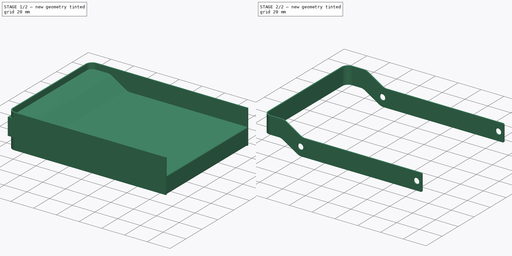
[diagram: build sequence overview — one tinted view per stage of 2, left to right]
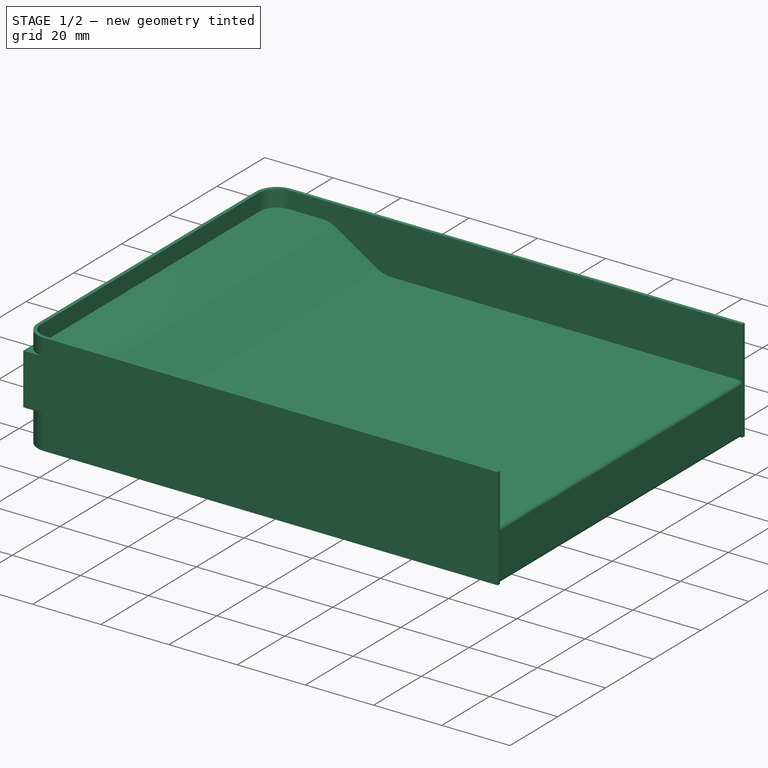
[diagram: stage 1 of 2 — iso view after this stage's code; geometry added in this stage tinted green]
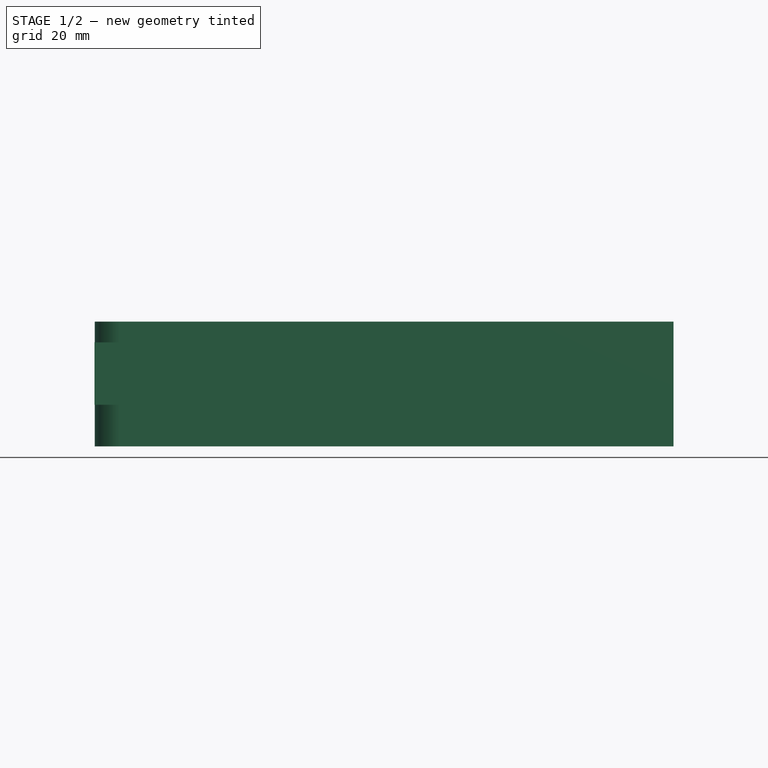
[diagram: stage 1 of 2 — front view after this stage's code; geometry added in this stage tinted green]
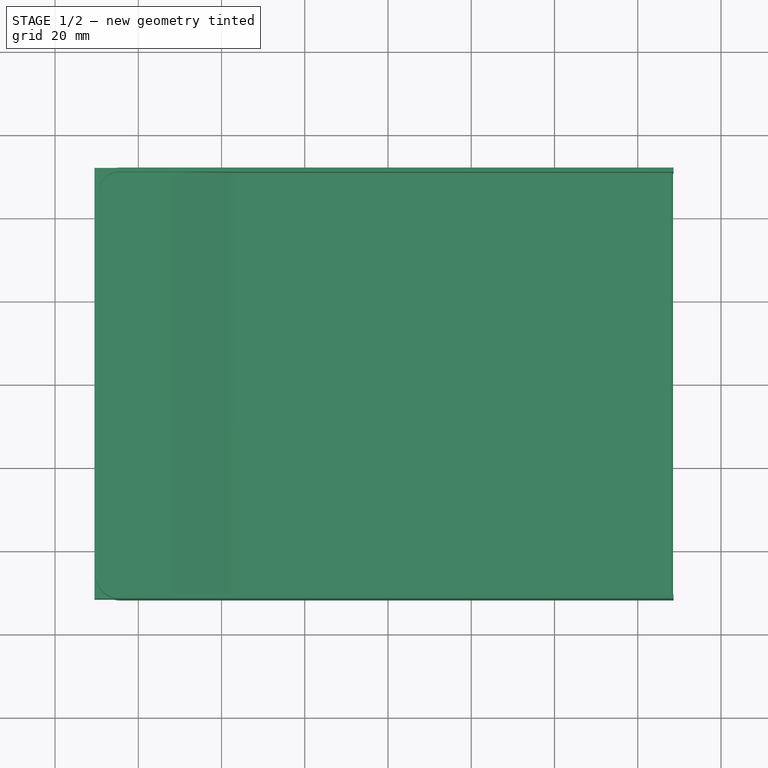
[diagram: stage 1 of 2 — top view after this stage's code; geometry added in this stage tinted green]
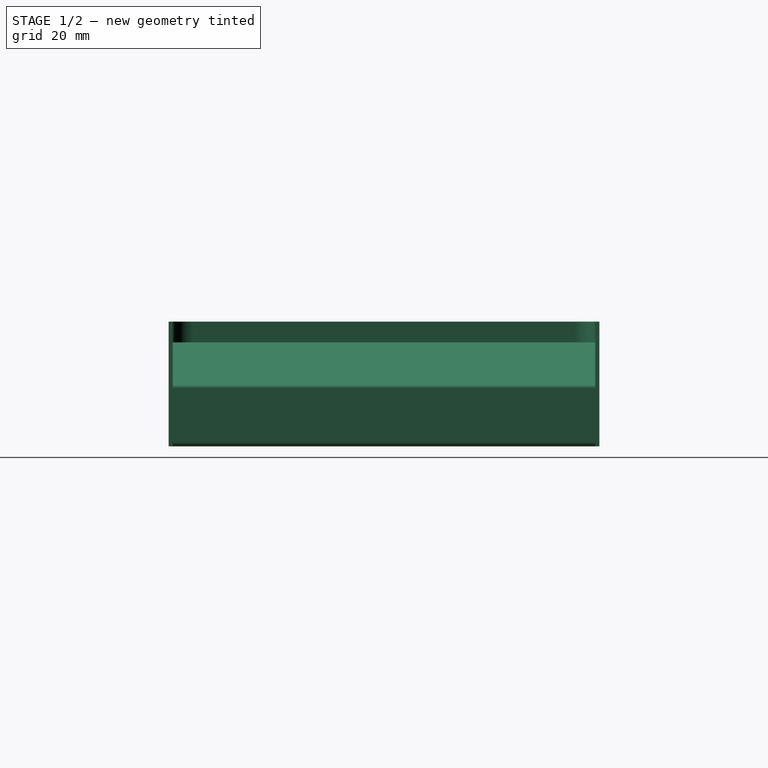
[diagram: stage 1 of 2 — right view after this stage's code; geometry added in this stage tinted green]
FCSTD DOCUMENT  (FreeCAD 0.18R16155 (Git))
Label: PT-H01B
License: All rights reserved
LicenseURL: http://en.wikipedia.org/wiki/All_rights_reserved
objects: Sketcher::SketchObject×3, PartDesign::Body×3, PartDesign::Pad×2, PartDesign::ShapeBinder×1, PartDesign::Boolean×1, App::Part×1
note: 12 computed .brp shape members not serialized (recipe doc carries the construction recipe); baked Part::Feature solids carry a one-line shape summary decoded from their .brp

FEATURE [Sketcher::SketchObject] Sketch  label="Boîtier.Sketch"
  MapMode = 5
  Support = -> [XY_Plane001]
  sketch-geometry (4):
    g0: LineSegment StartX=-73.5 StartY=51.75 StartZ=0 EndX=-73.5 EndY=-51.75 EndZ=0
    g1: LineSegment StartX=-73.5 StartY=-51.75 StartZ=0 EndX=73.5 EndY=-51.75 EndZ=0
    g2: LineSegment StartX=73.5 StartY=-51.75 StartZ=0 EndX=73.5 EndY=51.75 EndZ=0
    g3: LineSegment StartX=73.5 StartY=51.75 StartZ=0 EndX=-73.5 EndY=51.75 EndZ=0
  constraints (9):
    c: DistanceY(g0,g0) = 103.5
    c: DistanceX(g1,g1) = 147
    c: Symmetric(g1,g1,g-2)
    c: Symmetric(g2,g2,g-1)
    c: Symmetric(g3,g3,g-2)
    c: Symmetric(g0,g0,g-1)
    c: Symmetric(g0,g2,g-2)
    c: Symmetric(g1,g3,g-1)
    c: Coincident(g0,g1)
FEATURE [PartDesign::Body] Body  label="Boîtier.Body"
  Group = -> [Sketch]
  Origin = -> Origin001
FEATURE [Sketcher::SketchObject] Sketch001  label="Base.Sketch"
  MapMode = 5
  Support = -> [XY_Plane002]
  sketch-geometry (20):
    g0: LineSegment StartX=-89.4599 StartY=45.75 StartZ=0 EndX=-89.4599 EndY=-45.75 EndZ=0
    g1: LineSegment StartX=48.5941 StartY=50.75 StartZ=0 EndX=48.5941 EndY=51.75 EndZ=0
    g2: ArcOfCircle CenterX=-84.4599 CenterY=45.75 CenterZ=0 NormalX=0 NormalY=0 NormalZ=1 AngleXU=0 Radius=5 StartAngle=1.5708 EndAngle=3.14159
    g3: ArcOfCircle CenterX=-84.4599 CenterY=-45.75 CenterZ=0 NormalX=0 NormalY=0 NormalZ=1 AngleXU=0 Radius=5 StartAngle=3.14159 EndAngle=4.71239
    g4: LineSegment StartX=48.5941 StartY=50.75 StartZ=0 EndX=-84.4599 EndY=50.75 EndZ=0
    g5: LineSegment StartX=48.5941 StartY=-50.75 StartZ=0 EndX=-84.4599 EndY=-50.75 EndZ=0
    g6: ArcOfCircle CenterX=-84.4599 CenterY=45.75 CenterZ=0 NormalX=0 NormalY=0 NormalZ=1 AngleXU=0 Radius=6 StartAngle=1.5708 EndAngle=3.14159
    g7: ArcOfCircle CenterX=-84.4599 CenterY=-45.75 CenterZ=0 NormalX=0 NormalY=0 NormalZ=1 AngleXU=0 Radius=6 StartAngle=3.14159 EndAngle=4.71239
    g8: LineSegment StartX=-84.4599 StartY=51.75 StartZ=0 EndX=48.5941 EndY=51.75 EndZ=0
    g9: LineSegment StartX=-84.4599 StartY=-51.75 StartZ=0 EndX=48.5941 EndY=-51.75 EndZ=0
    g10: LineSegment StartX=48.5941 StartY=-50.75 StartZ=0 EndX=48.5941 EndY=-51.75 EndZ=0
    g11: LineSegment StartX=-90.4599 StartY=45.75 StartZ=0 EndX=-90.4599 EndY=-45.75 EndZ=0
    g12: LineSegment [constr] StartX=-89.4599 StartY=-45.75 StartZ=0 EndX=-90.4599 EndY=-45.75 EndZ=0
    g13: LineSegment [constr] StartX=-84.4599 StartY=-51.75 StartZ=0 EndX=-84.4599 EndY=-50.75 EndZ=0
    g14: LineSegment [constr] StartX=-84.4599 StartY=51.75 StartZ=0 EndX=-84.4599 EndY=-51.75 EndZ=0
    g15: LineSegment [constr] StartX=-90.4599 StartY=-45.75 StartZ=0 EndX=-84.4599 EndY=-45.75 EndZ=0
    g16: LineSegment [constr] StartX=-89.4599 StartY=0 StartZ=0 EndX=-90.4599 EndY=0 EndZ=0
    g17: LineSegment [constr] StartX=-84.4599 StartY=45.75 StartZ=0 EndX=-69.4599 EndY=45.75 EndZ=0
    g18: LineSegment [constr] StartX=-89.4599 StartY=45.75 StartZ=0 EndX=-84.4599 EndY=45.75 EndZ=0
    g19: LineSegment [constr] StartX=-90.4599 StartY=45.75 StartZ=0 EndX=-89.4599 EndY=45.75 EndZ=0
  constraints (54):
    c: Coincident(g0,g3)
    c: Coincident(g0,g2)
    c: Coincident(g11,g7)
    c: Coincident(g11,g6)
    c: Coincident(g3,g5)
    c: Coincident(g7,g9)
    c: Coincident(g6,g8)
    c: Coincident(g2,g4)
    c: Coincident(g5,g10)
    c: Coincident(g9,g10)
    c: Coincident(g1,g8)
    c: Coincident(g4,g1)
    c: Parallel(g4,g8)
    c: Parallel(g8,g9)
    c: Parallel(g14,g11)
    c: Parallel(g11,g0)
    c: Equal(g10,g13)
    c: Equal(g13,g12)
    c: Equal(g1,g10)
    c: Coincident(g14,g6)
    c: Coincident(g14,g13)
    c: Coincident(g13,g3)
    c: Coincident(g13,g7)
    c: Coincident(g12,g15)
    c: Coincident(g12,g7)
    c: Perpendicular(g5,g13)
    c: Perpendicular(g9,g14)
    c: DistanceY(g14,g14) = 103.5
    c: Coincident(g2,g6)
    c: PointOnObject(g2,g14)
    c: PointOnObject(g16,g11)
    c: Coincident(g15,g7)
    c: Coincident(g3,g7)
    c: PointOnObject(g3,g14)
    c: Coincident(g12,g0)
    c: PointOnObject(g16,g-1)
    c: PointOnObject(g16,g-1)
    c: DistanceX(g16,g16) = 1
    c: Perpendicular(g14,g15)
    c: PointOnObject(g2,g14)
    c: Perpendicular(g5,g14)
    c: Symmetric(g2,g3,g-1)
    c: Equal(g5,g4)
    c: Coincident(g17,g2)
    c: Perpendicular(g17,g14)
    c: DistanceX(g17,g17) = 15
    c: Coincident(g18,g2)
    c: Coincident(g18,g0)
    c: DistanceX(g18,g18) = 5
    c: Perpendicular(g14,g18)
    c: Coincident(g19,g0)
    c: Coincident(g19,g6)
    c: Equal(g19,g16)
    c: Equal(g19,g1)
FEATURE [Sketcher::SketchObject] Sketch002  label="Face.Sketch"
  MapMode = 5
  Placement = pos=(0,0,0) rot=(1,0,0;1.5708rad)
  Support = -> [XZ_Plane003]
  sketch-geometry (38):
    g0: LineSegment StartX=-57.53 StartY=1.8e-15 StartZ=0 EndX=47.47 EndY=0 EndZ=0
    g1: LineSegment StartX=48.47 StartY=14 StartZ=0 EndX=48.47 EndY=1 EndZ=0
    g2: LineSegment [constr] StartX=47.47 StartY=15 StartZ=0 EndX=47.47 EndY=14 EndZ=0
    g3: LineSegment [constr] StartX=47.47 StartY=14 StartZ=0 EndX=48.47 EndY=14 EndZ=0
    g4: LineSegment [constr] StartX=47.47 StartY=0 StartZ=0 EndX=47.47 EndY=1 EndZ=0
    g5: LineSegment [constr] StartX=47.47 StartY=1 StartZ=0 EndX=48.47 EndY=1 EndZ=0
    g6: ArcOfCircle CenterX=47.47 CenterY=14 CenterZ=0 NormalX=0 NormalY=0 NormalZ=1 AngleXU=0 Radius=1 StartAngle=0 EndAngle=1.5708
    g7: ArcOfCircle CenterX=47.47 CenterY=1 CenterZ=0 NormalX=0 NormalY=0 NormalZ=1 AngleXU=0 Radius=1 StartAngle=4.71239 EndAngle=6.28319
    g8: LineSegment StartX=-55.03 StartY=15 StartZ=0 EndX=47.47 EndY=15 EndZ=0
    g9: Circle CenterX=-58.0059 CenterY=7.5 CenterZ=0 NormalX=0 NormalY=0 NormalZ=1 AngleXU=0 Radius=2.5
    g10: Circle CenterX=43.5941 CenterY=7.5 CenterZ=0 NormalX=0 NormalY=0 NormalZ=1 AngleXU=0 Radius=2.5
    g11: LineSegment [constr] StartX=-58.0059 StartY=7.52873 StartZ=0 EndX=43.5941 EndY=7.52873 EndZ=0
    g12: LineSegment [constr] StartX=43.5974 StartY=7.5 StartZ=0 EndX=43.5974 EndY=0 EndZ=0
    g13: LineSegment [constr] StartX=26.5762 StartY=7.50078 StartZ=0 EndX=48.47 EndY=7.50078 EndZ=0
    g14: LineSegment [constr] StartX=-89.03 StartY=25 StartZ=0 EndX=-89.03 EndY=0 EndZ=0
    g15: LineSegment [constr] StartX=-36.394 StartY=15 StartZ=0 EndX=-36.394 EndY=0 EndZ=0
    g16: LineSegment StartX=-89.03 StartY=25 StartZ=0 EndX=-74.03 EndY=25.0007 EndZ=0
    g17: LineSegment StartX=-89.03 StartY=10 StartZ=0 EndX=-76.53 EndY=10.0006 EndZ=0
    g18: LineSegment StartX=-70.8835 StartY=24.0007 StartZ=0 EndX=-58.1764 EndY=16 EndZ=0
    g19: LineSegment StartX=-73.3835 StartY=9.00079 StartZ=0 EndX=-60.6764 EndY=1 EndZ=0
    g20: ArcOfCircle CenterX=-75.3587 CenterY=15.3699 CenterZ=0 NormalX=0 NormalY=0 NormalZ=1 AngleXU=0 Radius=9.722 StartAngle=1.09245 EndAngle=1.43369
    g21: ArcOfCircle CenterX=-53.7012 CenterY=24.6308 CenterZ=0 NormalX=0 NormalY=0 NormalZ=1 AngleXU=0 Radius=9.722 StartAngle=4.23404 EndAngle=4.57529
    g22: ArcOfCircle CenterX=-56.2012 CenterY=9.63077 CenterZ=0 NormalX=0 NormalY=0 NormalZ=1 AngleXU=0 Radius=9.722 StartAngle=4.23404 EndAngle=4.57529
    g23: LineSegment [constr] StartX=48.47 StartY=25.0065 StartZ=0 EndX=48.47 EndY=0 EndZ=0
    g24: LineSegment [constr] StartX=-76.53 StartY=10.0006 StartZ=0 EndX=-76.5299 EndY=9.00063 EndZ=0
    g25: ArcOfCircle CenterX=-77.3161 CenterY=2.07591 CenterZ=0 NormalX=0 NormalY=0 NormalZ=1 AngleXU=0 Radius=7.96362 StartAngle=1.05432 EndAngle=1.47192
    g26: LineSegment [constr] StartX=-70.8835 StartY=24.0007 StartZ=0 EndX=-70.8835 EndY=25.0007 EndZ=0
    g27: LineSegment [constr] StartX=-55.03 StartY=16 StartZ=0 EndX=-55.03 EndY=15 EndZ=0
    g28: LineSegment [constr] StartX=-55.03 StartY=16 StartZ=0 EndX=-58.1764 EndY=16 EndZ=0
    g29: LineSegment [constr] StartX=-60.6764 StartY=0 StartZ=0 EndX=-60.6764 EndY=1 EndZ=0
    g30: LineSegment [constr] StartX=-74.03 StartY=25.0007 StartZ=0 EndX=-70.8835 EndY=25.0007 EndZ=0
    g31: LineSegment [constr] StartX=-60.6764 StartY=0 StartZ=0 EndX=-57.53 EndY=1.8e-15 EndZ=0
    g32: LineSegment [constr] StartX=-76.5299 StartY=9.00063 StartZ=0 EndX=-73.3835 EndY=9.00079 EndZ=0
    g33: LineSegment [constr] StartX=48.47 StartY=25.0065 StartZ=0 EndX=-89.03 EndY=25 EndZ=0
    g34: LineSegment StartX=-90.53 StartY=25 StartZ=0 EndX=-90.53 EndY=10 EndZ=0
    g35: LineSegment [constr] StartX=-90.53 StartY=25 StartZ=0 EndX=-90.53 EndY=0 EndZ=0
    g36: LineSegment StartX=-90.53 StartY=25 StartZ=0 EndX=-89.03 EndY=25 EndZ=0
    g37: LineSegment StartX=-90.53 StartY=10 StartZ=0 EndX=-89.03 EndY=10 EndZ=0
  constraints (100):
    c: Coincident(g0,g7)
    c: Coincident(g6,g8)
    c: Coincident(g7,g1)
    c: Coincident(g6,g1)
    c: DistanceY(g14,g14) = 25
    c: PointOnObject(g14,g-1)
    c: Perpendicular(g14,g-1,g14) = 1.5708
    c: Parallel(g8,g0)
    c: PointOnObject(g0,g-1)
    c: PointOnObject(g12,g0)
    c: Coincident(g4,g0)
    c: Coincident(g7,g4)
    c: Coincident(g5,g7)
    c: Coincident(g1,g5)
    c: PointOnObject(g13,g1)
    c: Perpendicular(g12,g13,g10) = 1.5708
    c: Perpendicular(g12,g11,g10) = 1.5708
    c: Perpendicular(g12,g0,g12) = 1.5708
    c: Perpendicular(g4,g0,g0) = 4.71239
    c: Perpendicular(g5,g1,g1) = 4.71239
    c: Perpendicular(g13,g1,g13) = 4.71239
    c: Coincident(g3,g1)
    c: Coincident(g2,g6)
    c: Coincident(g6,g2)
    c: Coincident(g3,g6)
    c: Perpendicular(g3,g1,g1) = 4.71239
    c: Perpendicular(g2,g8,g6) = 1.5708
    c: PointOnObject(g0,g-1)
    c: PointOnObject(g17,g14)
    c: DistanceY(g17,g14) = 15
    c: PointOnObject(g15,g8)
    c: PointOnObject(g15,g0)
    c: Perpendicular(g15,g8,g15) = 1.5708
    c: DistanceX(g17,g17) = 12.5
    c: DistanceX(g16,g16) = 15
    c: DistanceX(g8,g8) = 102.5
    c: DistanceX(g0,g0) = 105
    c: Equal(g2,g3)
    c: Equal(g3,g5)
    c: Equal(g5,g4)
    c: DistanceX(g3,g3) = 1
    c: PointOnObject(g23,g1)
    c: PointOnObject(g23,g-1)
    c: DistanceX(g14,g23) = 137.5
    c: Coincident(g16,g20)
    c: Coincident(g20,g18)
    c: Coincident(g18,g21)
    c: Coincident(g21,g8)
    c: Coincident(g19,g22)
    c: Coincident(g22,g0)
    c: Equal(g20,g21)
    c: Equal(g21,g22)
    c: Equal(g18,g19)
    c: Coincident(g24,g17)
    c: Perpendicular(g24,g17)
    c: DistanceY(g24,g24) = 1
    c: Coincident(g25,g17)
    c: Coincident(g25,g19)
    c: Coincident(g28,g18)
    c: Coincident(g28,g27)
    c: Coincident(g27,g8)
    c: Coincident(g18,g26)
    c: Coincident(g29,g19)
    c: Perpendicular(g27,g8)
    c: Perpendicular(g28,g27)
    c: Equal(g24,g26)
    c: Equal(g26,g27)
    c: Equal(g27,g29)
    c: Horizontal(g30)
    c: Coincident(g31,g29)
    c: Coincident(g31,g0)
    c: Coincident(g32,g24)
    c: Coincident(g32,g19)
    c: Coincident(g30,g16)
    c: Coincident(g30,g26)
    c: PointOnObject(g29,g-1)
    c: Perpendicular(g32,g24)
    c: Perpendicular(g31,g29)
    c: Perpendicular(g30,g26)
    c: Equal(g32,g30)
    c: Equal(g28,g31)
    c: Equal(g30,g28)
    c: Perpendicular(g-1,g23)
    c: Coincident(g33,g23)
    c: PointOnObject(g16,g33)
    c: PointOnObject(g35,g-1)
    c: Perpendicular(g-1,g35)
    c: PointOnObject(g34,g35)
    c: Coincident(g36,g34)
    c: Coincident(g37,g34)
    c: Equal(g36,g37)
    c: Equal(g34,g15)
    c: Perpendicular(g34,g36)
    c: Perpendicular(g34,g37)
    c: Coincident(g37,g17)
    c: DistanceX(g36,g36) = 1.5
    c: Coincident(g33,g14)
    c: Coincident(g36,g16)
    c: Coincident(g16,g14)
    c: PointOnObject(g35,g36)
FEATURE [PartDesign::Pad] Pad  label="Base.Pad"
  Length = 30
  Length2 = 100
  Profile = -> Sketch001
  Type = 0
FEATURE [PartDesign::ShapeBinder] ShapeBinder  label="Base.ShapeBinder"
  Placement = pos=(0,0,30) rot=(0,0,1;0rad)
  Support = -> [Pad]
  TraceSupport = false
FEATURE [PartDesign::Pad] Pad001  label="Face.Pad"
  Length = 103.5
  Length2 = 100
  Midplane = true
  Placement = pos=(0,0,0) rot=(1,0,0;1.5708rad)
  Profile = -> Sketch002
  Type = 0
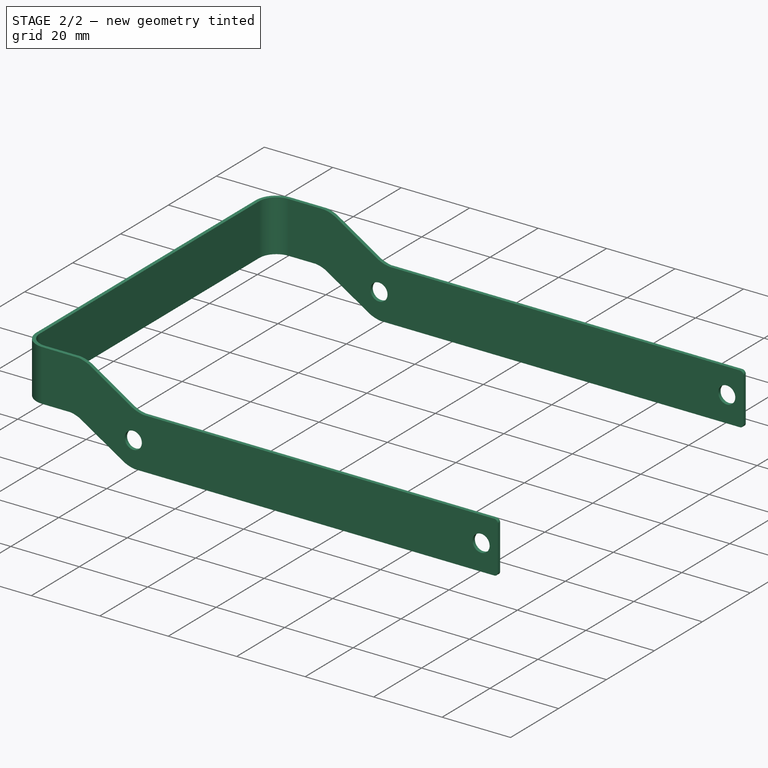
[diagram: stage 2 of 2 — iso view after this stage's code; geometry added in this stage tinted green]
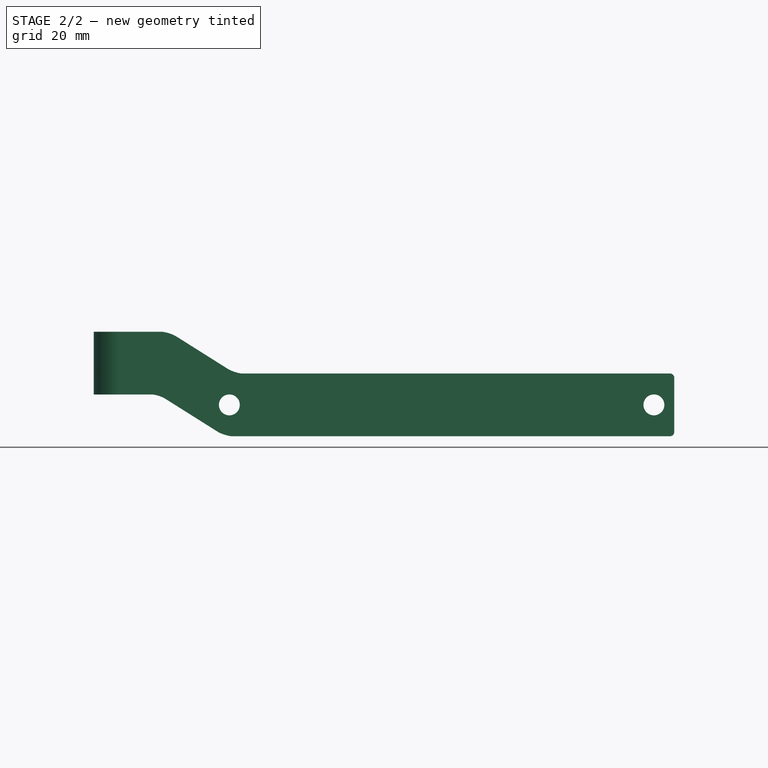
[diagram: stage 2 of 2 — front view after this stage's code; geometry added in this stage tinted green]
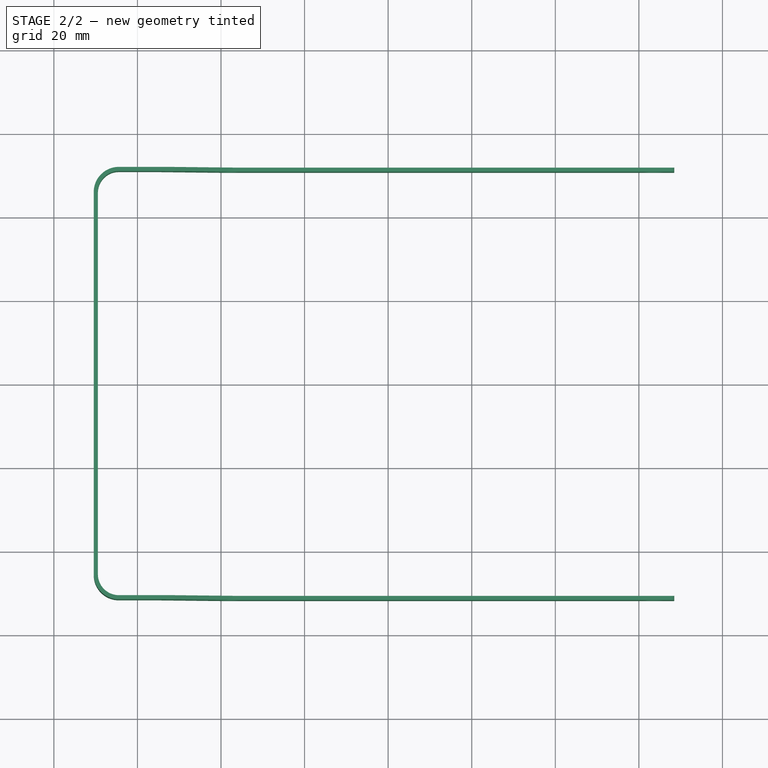
[diagram: stage 2 of 2 — top view after this stage's code; geometry added in this stage tinted green]
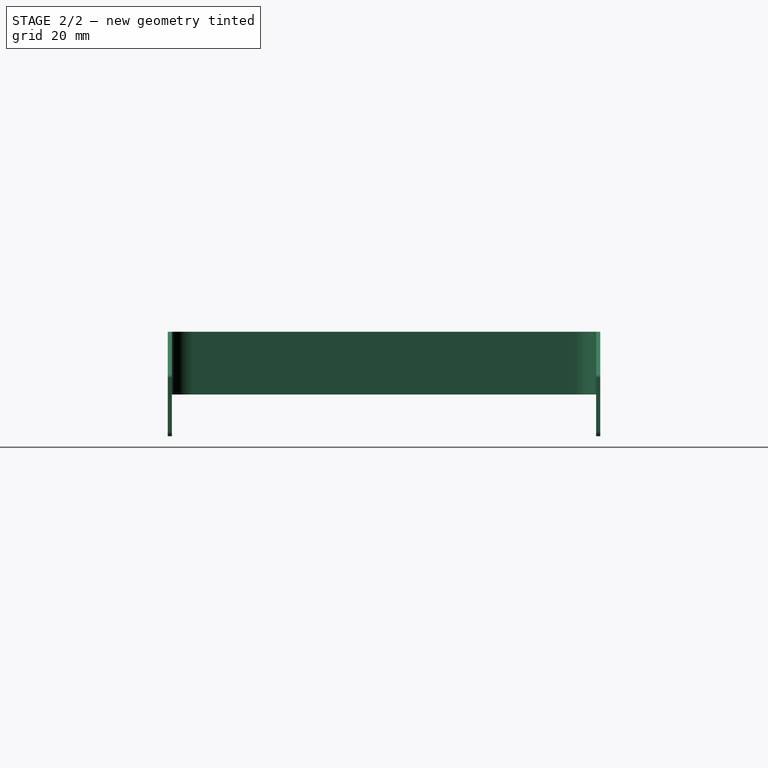
[diagram: stage 2 of 2 — right view after this stage's code; geometry added in this stage tinted green]
FEATURE [PartDesign::Body] Body002  label="Face.Body"
  Group = -> [Sketch002,Pad001,ShapeBinder]
  Origin = -> Origin003
  Tip = -> Pad001
FEATURE [PartDesign::Boolean] Boolean  label="Poignée.Boolean"
  BaseFeature = -> Pad
  Group = -> [Body002]
  Type = 2
FEATURE [PartDesign::Body] Body001  label="Base.Body"
  Group = -> [Sketch001,Pad,Boolean]
  Origin = -> Origin002
  Tip = -> Boolean
FEATURE [App::Part] Part  label="Poignée.Part"
  Group = -> [Body,Body001]
  Origin = -> Origin
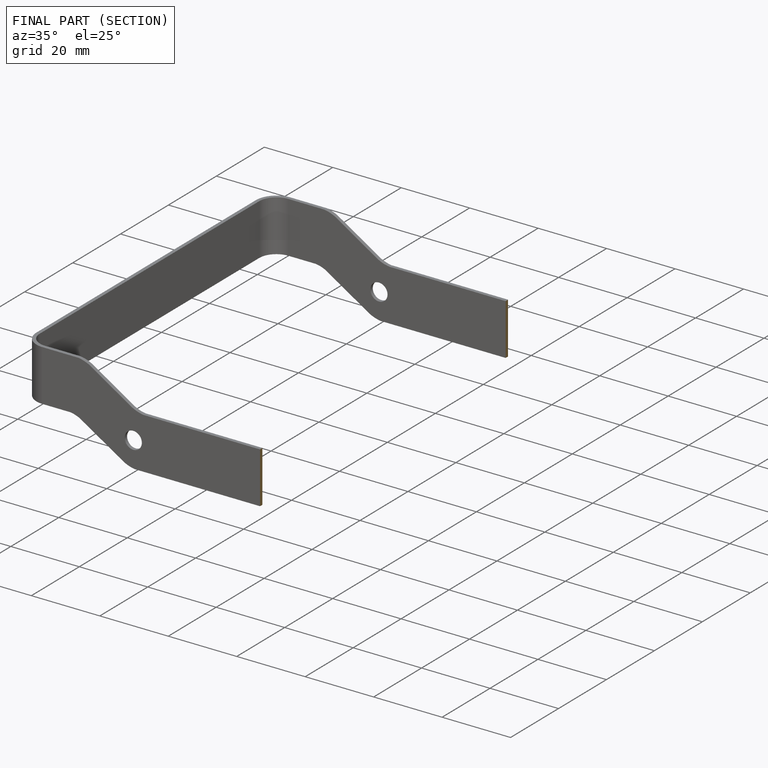
[diagram: finished part — half-section view (interior)]
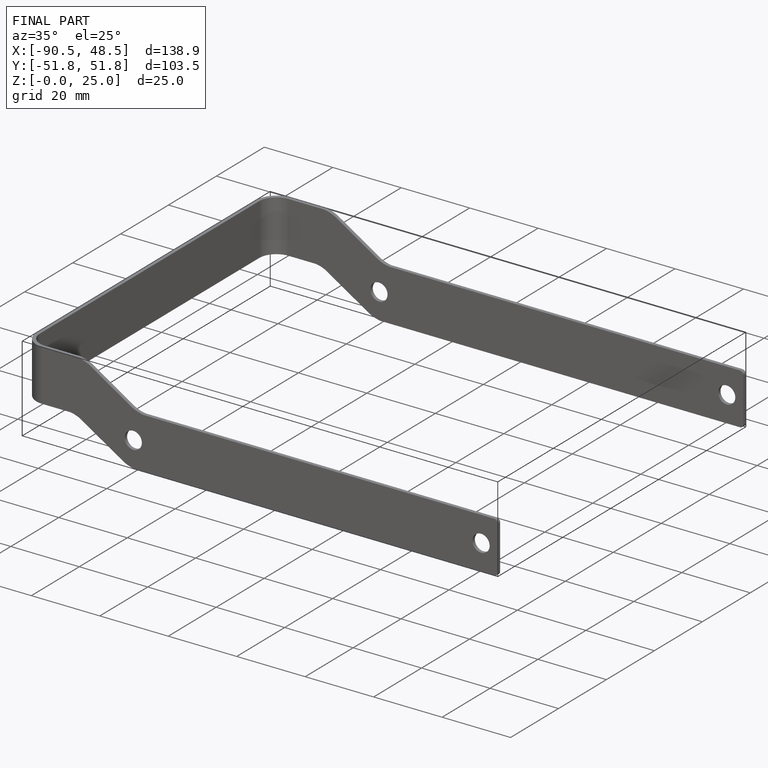
[diagram: finished part — iso view with bounding-box wireframe]
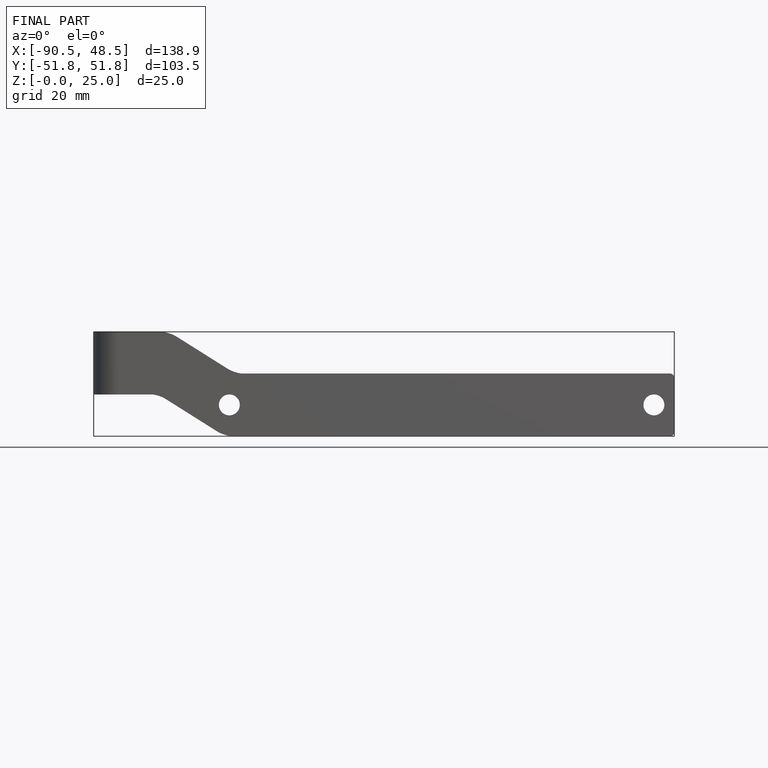
[diagram: finished part — front view with bounding-box wireframe]
